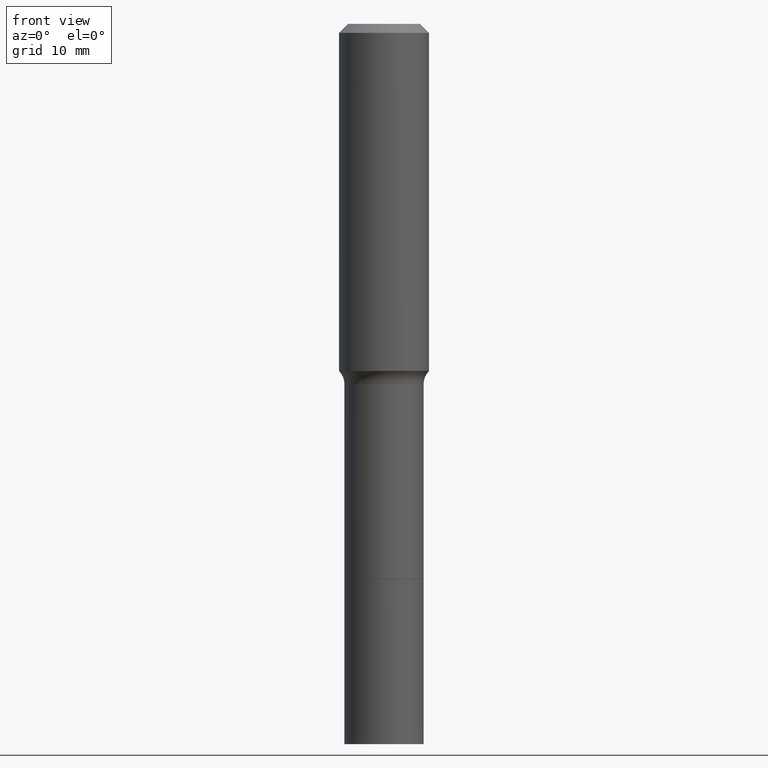
[diagram: clean part render]
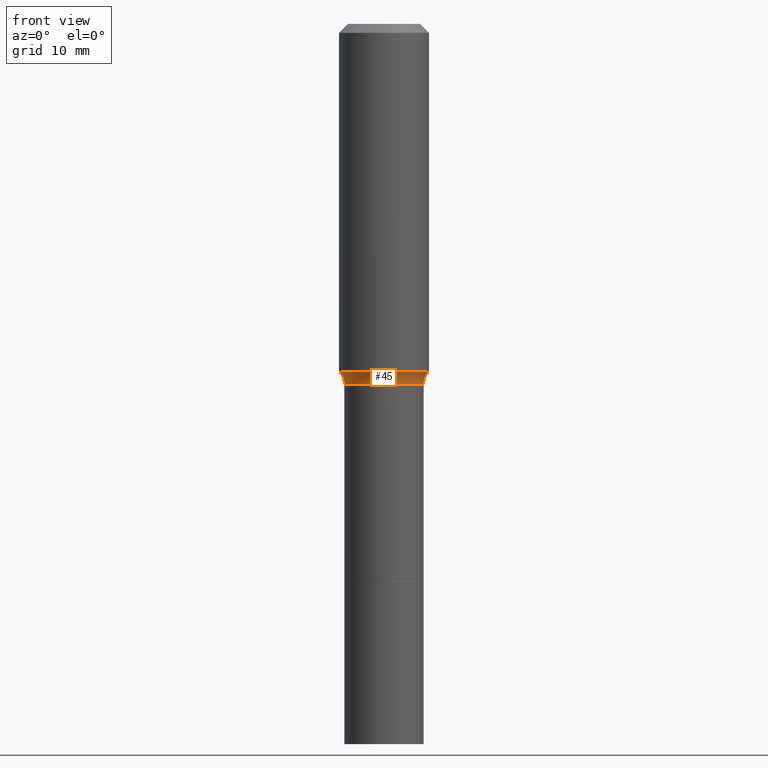
[diagram: same view with one face highlighted and labeled with its STEP entity id]
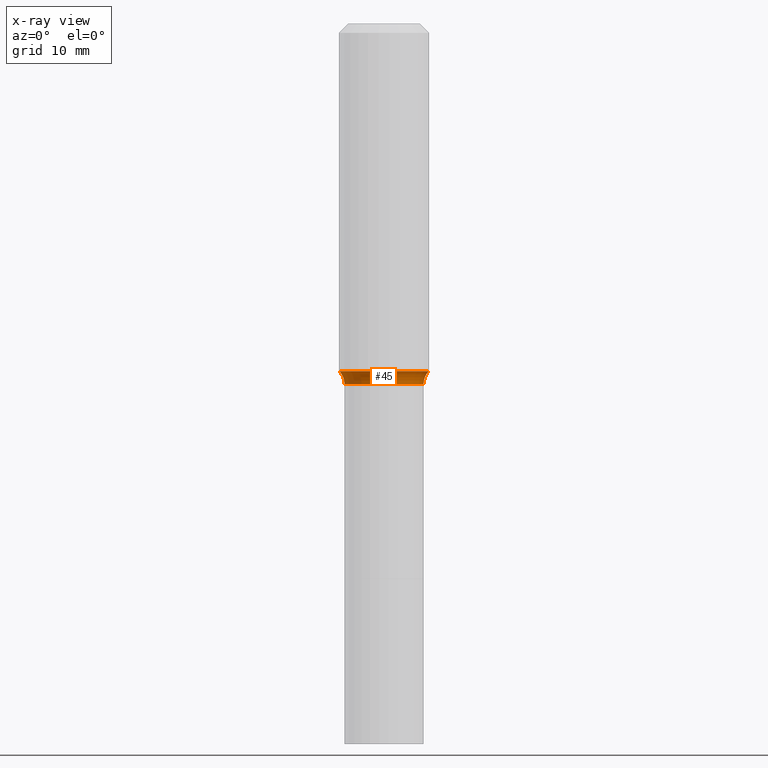
[diagram: x-ray of the same camera — body ghosted, the highlighted face saturated]
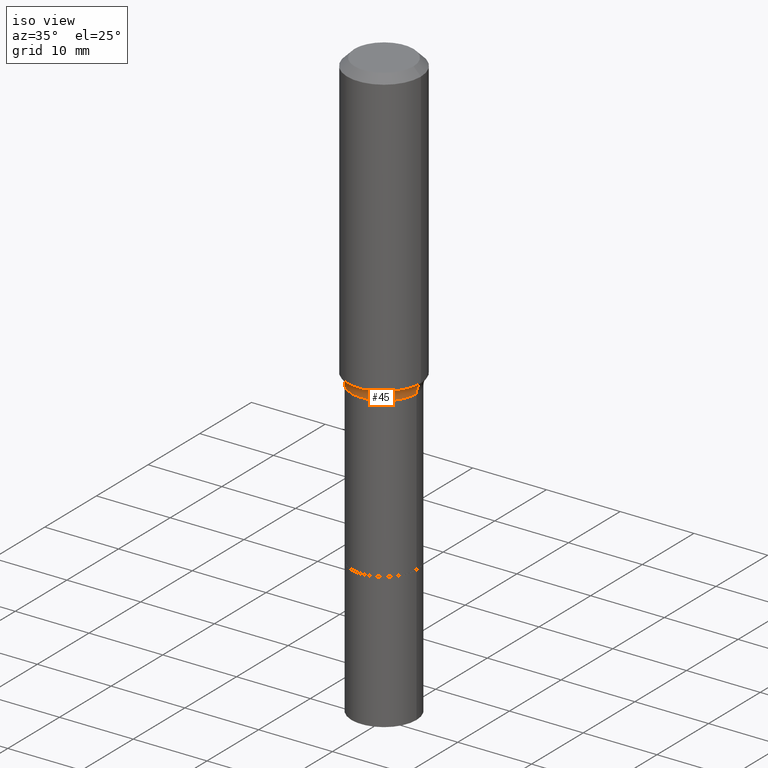
[diagram: same view with one face highlighted and labeled with its STEP entity id]
A machine part, front view. The second image highlights one B-rep face of the part: STEP entity #45.
The next image is the same camera in x-ray: the body ghosted, the highlighted face saturated — about 0% of this face is hidden behind the body in this view.
A second angle (iso view) of the same face is appended — the face is thin or edge-on in the first view.
In plain terms, the highlighted toroidal blend (fillet) surface has major radius 6.4325 mm and minor (blend) radius 2.032 mm.
Its self-contained STEP definition (entity closure, byte-faithful):
#37 = VERTEX_POINT ( 'NONE', #187 ) ;
#38 = ORIENTED_EDGE ( 'NONE', *, *, #434, .F. ) ;
#39 = CARTESIAN_POINT ( 'NONE',  ( 3.850635182219116347E-29, -5.497686516142417553E-15, -1.574600000000000222 ) ) ;
#45 = ADVANCED_FACE ( 'NONE', ( #506 ), #80, .F. ) ;
#51 = DIRECTION ( 'NONE',  ( -2.445468806185136597E-29, 3.491481338843145583E-15, 1.000000000000000000 ) ) ;
#62 = DIRECTION ( 'NONE',  ( 1.000000000000000000, -6.982962677686265133E-15, 4.883557194083112340E-29 ) ) ;
#80 = TOROIDAL_SURFACE ( 'NONE', #371, 0.2532499999999998641, 0.07999999999999996003 ) ;
#82 = VERTEX_POINT ( 'NONE', #306 ) ;
#136 = CARTESIAN_POINT ( 'NONE',  ( 0.2532499999999998641, -7.266121814266463777E-15, -1.574600000000000222 ) ) ;
#141 = CARTESIAN_POINT ( 'NONE',  ( 3.717210724986936016E-29, -5.307191752360030282E-15, -1.520040131195000255 ) ) ;
#150 = CIRCLE ( 'NONE', #154, 0.07999999999999996003 ) ;
#154 = AXIS2_PLACEMENT_3D ( 'NONE', #343, #502, #255 ) ;
#168 = CARTESIAN_POINT ( 'NONE',  ( 0.1947417038704663539, -6.667065802276527587E-15, -1.520040131195000255 ) ) ;
#173 = CARTESIAN_POINT ( 'NONE',  ( -0.1947417038704663539, -3.923468722012986135E-15, -1.520040131195000255 ) ) ;
#184 = AXIS2_PLACEMENT_3D ( 'NONE', #141, #310, #358 ) ;
#187 = CARTESIAN_POINT ( 'NONE',  ( 0.1732499999999998763, -6.707484800051562914E-15, -1.574600000000000222 ) ) ;
#206 = ORIENTED_EDGE ( 'NONE', *, *, #245, .T. ) ;
#239 = DIRECTION ( 'NONE',  ( 1.000000000000000000, -6.982962677686269866E-15, 0.000000000000000000 ) ) ;
#245 = EDGE_CURVE ( 'NONE', #82, #37, #334, .T. ) ;
#255 = DIRECTION ( 'NONE',  ( -1.000000000000000000, 7.105427357601001859E-15, 0.000000000000000000 ) ) ;
#273 = CIRCLE ( 'NONE', #184, 0.1947417038704664649 ) ;
#279 = CIRCLE ( 'NONE', #420, 0.07999999999999996003 ) ;
#306 = CARTESIAN_POINT ( 'NONE',  ( -0.1732499999999998763, -5.751423665781093007E-15, -1.574600000000000222 ) ) ;
#310 = DIRECTION ( 'NONE',  ( -2.445468806185136597E-29, 3.491481338843145583E-15, 1.000000000000000000 ) ) ;
#319 = VERTEX_POINT ( 'NONE', #168 ) ;
#331 = ORIENTED_EDGE ( 'NONE', *, *, #354, .T. ) ;
#334 = CIRCLE ( 'NONE', #510, 0.1732499999999998763 ) ;
#343 = CARTESIAN_POINT ( 'NONE',  ( -0.2532499999999998641, -3.698237037829964798E-15, -1.574600000000000222 ) ) ;
#354 = EDGE_CURVE ( 'NONE', #432, #82, #150, .T. ) ;
#358 = DIRECTION ( 'NONE',  ( 1.000000000000000000, -6.982962677686264344E-15, 0.000000000000000000 ) ) ;
#371 = AXIS2_PLACEMENT_3D ( 'NONE', #389, #51, #62 ) ;
#381 = DIRECTION ( 'NONE',  ( -6.982962677686266711E-15, -1.000000000000000000, 3.491481338843145583E-15 ) ) ;
#389 = CARTESIAN_POINT ( 'NONE',  ( 3.850635182219116347E-29, -5.497686516142417553E-15, -1.574600000000000222 ) ) ;
#401 = DIRECTION ( 'NONE',  ( -2.445468806185136597E-29, 3.491481338843145583E-15, 1.000000000000000000 ) ) ;
#420 = AXIS2_PLACEMENT_3D ( 'NONE', #136, #381, #461 ) ;
#432 = VERTEX_POINT ( 'NONE', #173 ) ;
#434 = EDGE_CURVE ( 'NONE', #319, #37, #279, .T. ) ;
#436 = ORIENTED_EDGE ( 'NONE', *, *, #441, .F. ) ;
#441 = EDGE_CURVE ( 'NONE', #432, #319, #273, .T. ) ;
#461 = DIRECTION ( 'NONE',  ( 1.000000000000000000, -6.982962677686262766E-15, 0.000000000000000000 ) ) ;
#475 = EDGE_LOOP ( 'NONE', ( #436, #331, #206, #38 ) ) ;
#502 = DIRECTION ( 'NONE',  ( 7.105427357601001859E-15, 1.000000000000000000, -3.491481338843145583E-15 ) ) ;
#506 = FACE_OUTER_BOUND ( 'NONE', #475, .T. ) ;
#510 = AXIS2_PLACEMENT_3D ( 'NONE', #39, #401, #239 ) ;